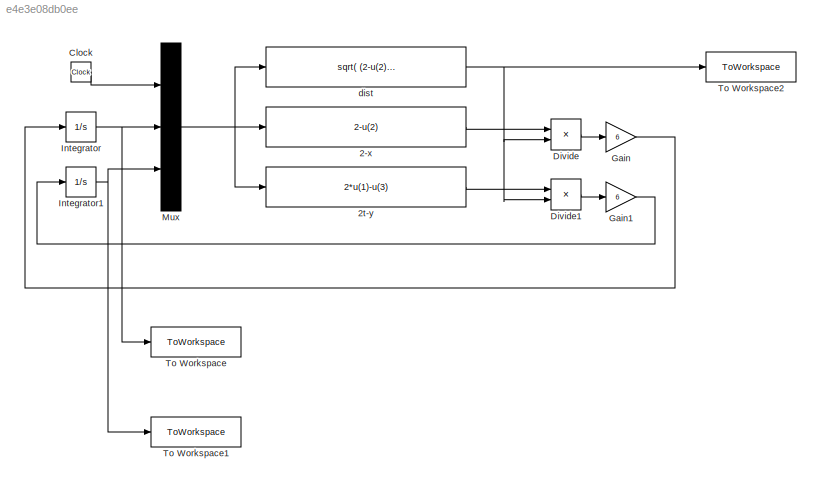
MODEL slx_e4e3e08db0ee
KIND model
CONFIG AbsTol = auto
CONFIG EnableMultiTasking = off
CONFIG FixedStep = 0.001
CONFIG MaxStep = auto
CONFIG MinStep = auto
CONFIG RelTol = 1e-3
CONFIG SampleTimeConstraint = Unconstrained
CONFIG SolverName = FixedStepAuto
CONFIG StartTime = 0.0
CONFIG StopTime = 10.0
BLOCK [Fcn] 2-x
  Expr = 2-u(2)
BLOCK [Fcn] 2t-y
  Expr = 2*u(1)-u(3)
BLOCK [Clock] Clock
BLOCK [Product] Divide
  Inputs = */
BLOCK [Product] Divide1
  Inputs = */
BLOCK [Gain] Gain
  Gain = 6
BLOCK [Gain] Gain1
  Gain = 6
BLOCK [Integrator] Integrator
BLOCK [Integrator] Integrator1
BLOCK [Mux] Mux
  DisplayOption = bar
  Inputs = 3
BLOCK [ToWorkspace] To Workspace
  FixptAsFi = on
  MaxDataPoints = inf
  SampleTime = -1
  SaveFormat = Timeseries
  VariableName = x
BLOCK [ToWorkspace] To Workspace1
  FixptAsFi = on
  MaxDataPoints = inf
  SampleTime = -1
  SaveFormat = Timeseries
  VariableName = y
BLOCK [ToWorkspace] To Workspace2
  FixptAsFi = on
  MaxDataPoints = inf
  SampleTime = -1
  SaveFormat = Timeseries
  VariableName = dis
BLOCK [Fcn] dist
  Expr = sqrt( (2-u(2))^2 + (2*u(1)-u(3))^2 )
LINE 2-x:1 -> Divide:1
LINE 2t-y:1 -> Divide1:1
LINE Clock:1 -> Mux:1
LINE Divide1:1 -> Gain1:1
LINE Divide:1 -> Gain:1
LINE Gain1:1 -> Integrator1:1
LINE Gain:1 -> Integrator:1
NET Integrator1:1 -> Mux:3, To Workspace1:1
NET Integrator:1 -> Mux:2, To Workspace:1
NET Mux:1 -> 2-x:1, 2t-y:1, dist:1
NET dist:1 -> Divide1:2, Divide:2, To Workspace2:1
note: NET lines group one-source signal fan-out (src -> all destinations, sorted); 1:1 wires keep LINE
